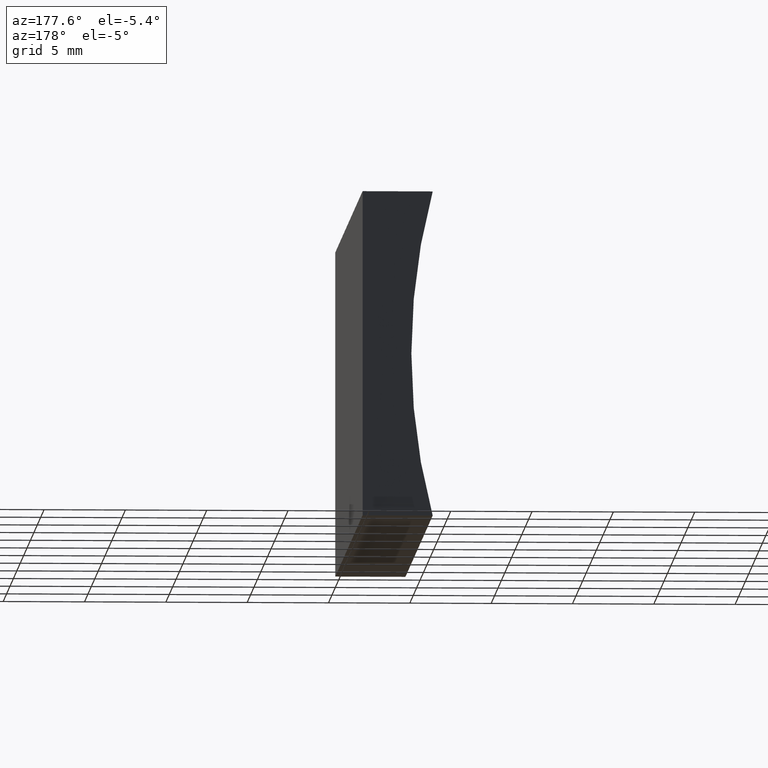
[diagram: clean part render]
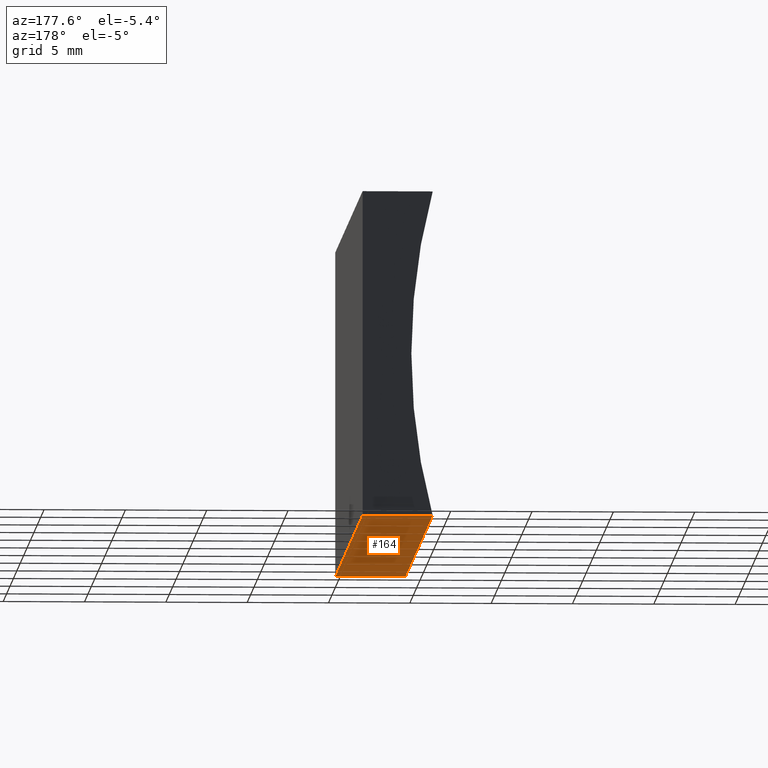
[diagram: same view with one face highlighted and labeled with its STEP entity id]
A machine part, auxiliary view. The second image highlights one B-rep face of the part: STEP entity #164.
In plain terms, the highlighted planar face has unit normal (0, -0, 1).
Its self-contained STEP definition (entity closure, byte-faithful):
#8 = LINE ( 'NONE', #13, #110 ) ;
#11 = PLANE ( 'NONE',  #107 ) ;
#12 = DIRECTION ( 'NONE',  ( -1.000000000000000000, 0.0000000000000000000, 0.0000000000000000000 ) ) ;
#13 = CARTESIAN_POINT ( 'NONE',  ( 0.0000000000000000000, 0.0000000000000000000, 0.0000000000000000000 ) ) ;
#15 = LINE ( 'NONE', #77, #76 ) ;
#16 = VECTOR ( 'NONE', #65, 1000.000000000000000 ) ;
#26 = CARTESIAN_POINT ( 'NONE',  ( 0.0000000000000000000, 40.00000000000000000, 0.0000000000000000000 ) ) ;
#31 = VERTEX_POINT ( 'NONE', #26 ) ;
#37 = LINE ( 'NONE', #49, #16 ) ;
#39 = CARTESIAN_POINT ( 'NONE',  ( -4.311501231034083200, 40.00000000000000000, -1.734723475976807100E-015 ) ) ;
#49 = CARTESIAN_POINT ( 'NONE',  ( 0.0000000000000000000, 40.00000000000000000, 0.0000000000000000000 ) ) ;
#50 = VERTEX_POINT ( 'NONE', #176 ) ;
#55 = EDGE_CURVE ( 'NONE', #31, #50, #116, .T. ) ;
#64 = DIRECTION ( 'NONE',  ( -0.0000000000000000000, -1.000000000000000000, -0.0000000000000000000 ) ) ;
#65 = DIRECTION ( 'NONE',  ( -1.000000000000000000, 0.0000000000000000000, 0.0000000000000000000 ) ) ;
#67 = VECTOR ( 'NONE', #193, 1000.000000000000000 ) ;
#72 = VERTEX_POINT ( 'NONE', #143 ) ;
#76 = VECTOR ( 'NONE', #64, 1000.000000000000000 ) ;
#77 = CARTESIAN_POINT ( 'NONE',  ( -4.311501231034083200, 40.00000000000000000, -1.734723475976807100E-015 ) ) ;
#81 = DIRECTION ( 'NONE',  ( 1.000000000000000000, 0.0000000000000000000, -0.0000000000000000000 ) ) ;
#83 = DIRECTION ( 'NONE',  ( 0.0000000000000000000, -0.0000000000000000000, 1.000000000000000000 ) ) ;
#87 = ORIENTED_EDGE ( 'NONE', *, *, #141, .T. ) ;
#90 = CARTESIAN_POINT ( 'NONE',  ( 0.0000000000000000000, 40.00000000000000000, 0.0000000000000000000 ) ) ;
#92 = ORIENTED_EDGE ( 'NONE', *, *, #55, .T. ) ;
#94 = FACE_OUTER_BOUND ( 'NONE', #202, .T. ) ;
#107 = AXIS2_PLACEMENT_3D ( 'NONE', #90, #83, #81 ) ;
#110 = VECTOR ( 'NONE', #12, 1000.000000000000000 ) ;
#116 = LINE ( 'NONE', #125, #67 ) ;
#125 = CARTESIAN_POINT ( 'NONE',  ( 0.0000000000000000000, 40.00000000000000000, 0.0000000000000000000 ) ) ;
#129 = ORIENTED_EDGE ( 'NONE', *, *, #150, .F. ) ;
#139 = EDGE_CURVE ( 'NONE', #31, #184, #37, .T. ) ;
#141 = EDGE_CURVE ( 'NONE', #50, #72, #8, .T. ) ;
#143 = CARTESIAN_POINT ( 'NONE',  ( -4.311501231034083200, 0.0000000000000000000, -1.734723475976807100E-015 ) ) ;
#150 = EDGE_CURVE ( 'NONE', #184, #72, #15, .T. ) ;
#160 = ORIENTED_EDGE ( 'NONE', *, *, #139, .F. ) ;
#164 = ADVANCED_FACE ( 'NONE', ( #94 ), #11, .F. ) ;
#176 = CARTESIAN_POINT ( 'NONE',  ( 0.0000000000000000000, 0.0000000000000000000, 0.0000000000000000000 ) ) ;
#184 = VERTEX_POINT ( 'NONE', #39 ) ;
#193 = DIRECTION ( 'NONE',  ( -0.0000000000000000000, -1.000000000000000000, -0.0000000000000000000 ) ) ;
#202 = EDGE_LOOP ( 'NONE', ( #87, #129, #160, #92 ) ) ;